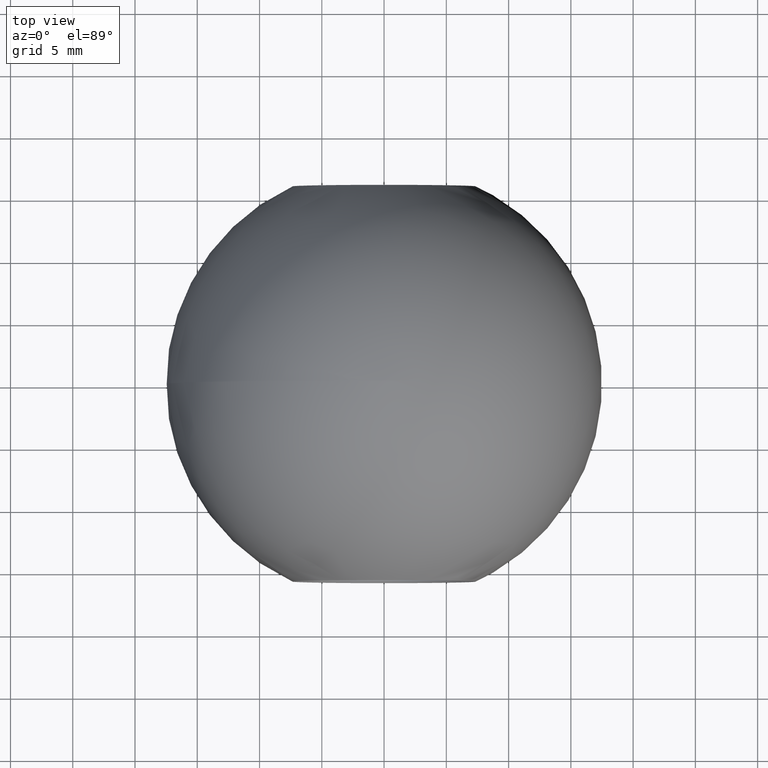
[diagram: clean part render]
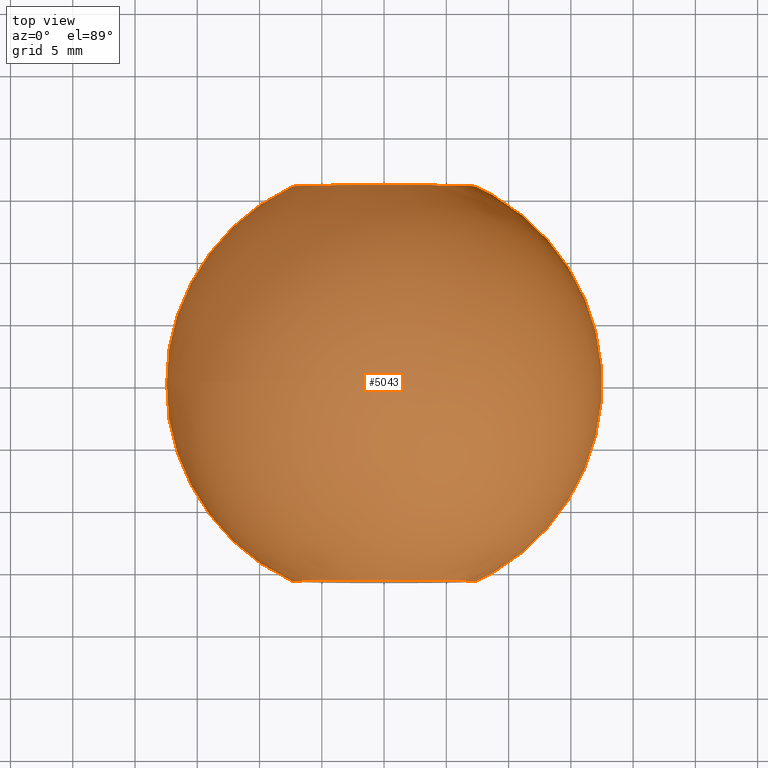
[diagram: same view with one face highlighted and labeled with its STEP entity id]
A machine part, top view. The second image highlights one B-rep face of the part: STEP entity #5043.
In plain terms, the highlighted spherical surface has radius 17.5 mm.
Its self-contained STEP definition (entity closure, byte-faithful):
#357 = SPHERICAL_SURFACE ( 'NONE', #2425, 17.50000000000000000 ) ;
#493 = AXIS2_PLACEMENT_3D ( 'NONE', #7025, #2053, #6970 ) ;
#978 = CARTESIAN_POINT ( 'NONE',  ( 0.0000000000000000000, 0.0000000000000000000, 0.0000000000000000000 ) ) ;
#1259 = CARTESIAN_POINT ( 'NONE',  ( 0.0000000000000000000, -15.86942167043450200, 7.376412125548847100 ) ) ;
#2053 = DIRECTION ( 'NONE',  ( -0.0000000000000000000, -1.000000000000000000, -0.0000000000000000000 ) ) ;
#2196 = VERTEX_POINT ( 'NONE', #7496 ) ;
#2425 = AXIS2_PLACEMENT_3D ( 'NONE', #978, #7944, #2433 ) ;
#2433 = DIRECTION ( 'NONE',  ( 1.000000000000000000, 0.0000000000000000000, 0.0000000000000000000 ) ) ;
#2820 = DIRECTION ( 'NONE',  ( 0.0000000000000000000, 1.000000000000000000, 0.0000000000000000000 ) ) ;
#3592 = DIRECTION ( 'NONE',  ( 0.0000000000000000000, 0.0000000000000000000, 1.000000000000000000 ) ) ;
#4111 = FACE_OUTER_BOUND ( 'NONE', #7289, .T. ) ;
#5043 = ADVANCED_FACE ( 'NONE', ( #8023, #4111 ), #357, .T. ) ;
#5622 = CIRCLE ( 'NONE', #493, 7.376412125548850600 ) ;
#6304 = ORIENTED_EDGE ( 'NONE', *, *, #7663, .T. ) ;
#6351 = ORIENTED_EDGE ( 'NONE', *, *, #8815, .T. ) ;
#6356 = EDGE_LOOP ( 'NONE', ( #6304 ) ) ;
#6923 = CIRCLE ( 'NONE', #8257, 7.376412125548847100 ) ;
#6970 = DIRECTION ( 'NONE',  ( 0.0000000000000000000, 0.0000000000000000000, -1.000000000000000000 ) ) ;
#7025 = CARTESIAN_POINT ( 'NONE',  ( 0.0000000000000000000, 15.86942167043449100, 0.0000000000000000000 ) ) ;
#7289 = EDGE_LOOP ( 'NONE', ( #6351 ) ) ;
#7496 = CARTESIAN_POINT ( 'NONE',  ( 0.0000000000000000000, 15.86942167043449100, -7.376412125548850600 ) ) ;
#7663 = EDGE_CURVE ( 'NONE', #2196, #2196, #5622, .T. ) ;
#7809 = CARTESIAN_POINT ( 'NONE',  ( 0.0000000000000000000, -15.86942167043450200, 0.0000000000000000000 ) ) ;
#7944 = DIRECTION ( 'NONE',  ( 0.0000000000000000000, 0.0000000000000000000, -1.000000000000000000 ) ) ;
#8023 = FACE_OUTER_BOUND ( 'NONE', #6356, .T. ) ;
#8090 = VERTEX_POINT ( 'NONE', #1259 ) ;
#8257 = AXIS2_PLACEMENT_3D ( 'NONE', #7809, #2820, #3592 ) ;
#8815 = EDGE_CURVE ( 'NONE', #8090, #8090, #6923, .T. ) ;